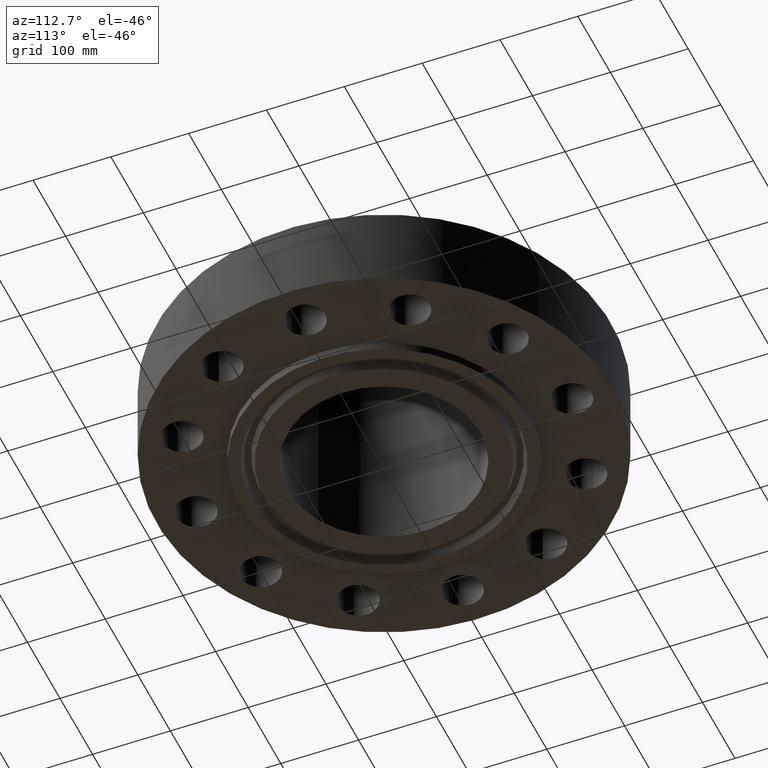
[diagram: clean part render]
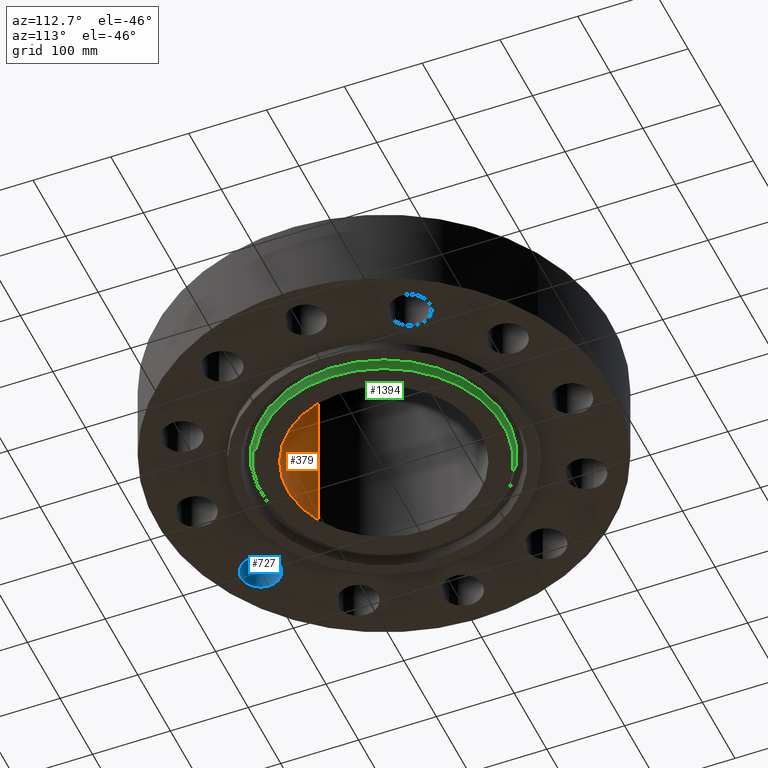
[diagram: same view with three faces highlighted in distinct colors, each labeled with its STEP entity id]
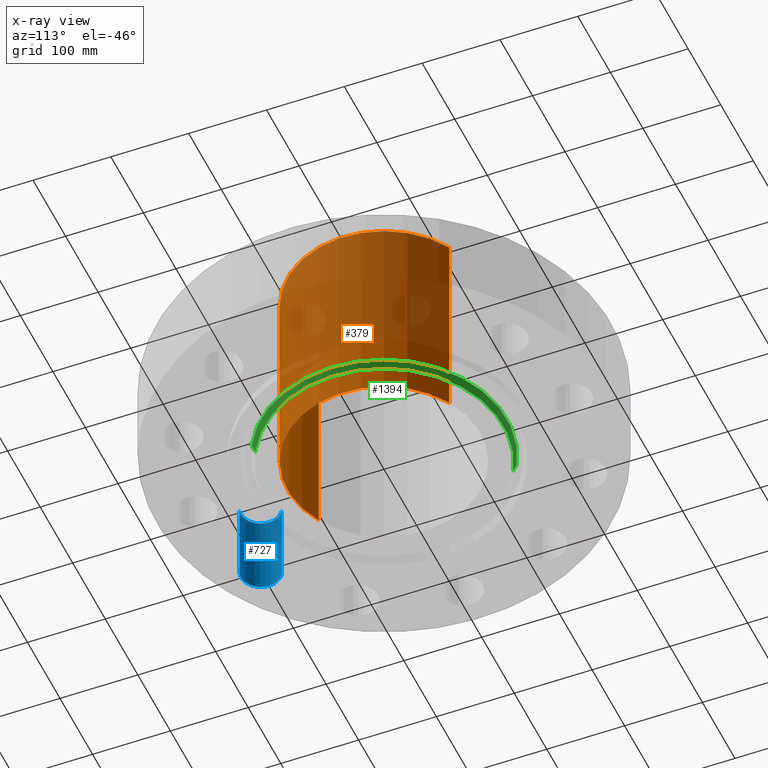
[diagram: x-ray of the same camera — body ghosted, the three highlighted faces saturated]
A machine part, auxiliary view with three faces highlighted in distinct colors.
The next image is the same camera in x-ray (body ghosted, the three faces saturated) — at least one of them is partly hidden behind the body in this view.
Their STEP definitions:

[orange] entity #379 — the highlighted cylindrical surface (partial cylindrical patch) has radius 123.825 mm, axis along (0, 0, -1).
#343=AXIS2_PLACEMENT_3D('Cylinder Axis2P3D',#340,#341,#342) ;
#347=AXIS2_PLACEMENT_3D('Circle Axis2P3D',#345,#346,$) ;
#363=AXIS2_PLACEMENT_3D('Circle Axis2P3D',#361,#362,$) ;
#340=CARTESIAN_POINT('Axis2P3D Location',(0.,0.,4.78100000002)) ;
#345=CARTESIAN_POINT('Axis2P3D Location',(0.,0.,10.)) ;
#349=CARTESIAN_POINT('Vertex',(2.3371995007,4.27821498923,10.)) ;
#351=CARTESIAN_POINT('Vertex',(-2.3371995007,-4.27821498923,10.)) ;
#354=CARTESIAN_POINT('Line Origine',(2.3371995007,4.27821498923,4.78100000002)) ;
#358=CARTESIAN_POINT('Vertex',(2.3371995007,4.27821498923,-0.438000000002)) ;
#361=CARTESIAN_POINT('Axis2P3D Location',(0.,0.,-0.438000000002)) ;
#365=CARTESIAN_POINT('Vertex',(-2.3371995007,-4.27821498923,-0.438000000002)) ;
#368=CARTESIAN_POINT('Line Origine',(-2.3371995007,-4.27821498923,4.78100000002)) ;
#341=DIRECTION('Axis2P3D Direction',(0.,0.,-0.0393700787402)) ;
#342=DIRECTION('Axis2P3D XDirection',(-0.0188750212049,-0.0345504945626,0.)) ;
#346=DIRECTION('Axis2P3D Direction',(0.,0.,-0.0393700787402)) ;
#355=DIRECTION('Vector Direction',(0.,0.,-0.0393700787402)) ;
#362=DIRECTION('Axis2P3D Direction',(0.,0.,-0.0393700787402)) ;
#369=DIRECTION('Vector Direction',(0.,0.,-0.0393700787402)) ;
#356=VECTOR('Line Direction',#355,0.0393700787402) ;
#370=VECTOR('Line Direction',#369,0.0393700787402) ;
#374=ORIENTED_EDGE('',*,*,#353,.F.) ;
#375=ORIENTED_EDGE('',*,*,#360,.T.) ;
#376=ORIENTED_EDGE('',*,*,#367,.T.) ;
#377=ORIENTED_EDGE('',*,*,#372,.F.) ;
#379=ADVANCED_FACE('PartBody',(#378),#344,.F.) ;
#348=CIRCLE('generated circle',#347,4.87500000002) ;
#364=CIRCLE('generated circle',#363,4.87500000002) ;
#344=CYLINDRICAL_SURFACE('generated cylinder',#343,4.87500000002) ;
#353=EDGE_CURVE('',#350,#352,#348,.T.) ;
#360=EDGE_CURVE('',#350,#359,#357,.T.) ;
#367=EDGE_CURVE('',#359,#366,#364,.T.) ;
#372=EDGE_CURVE('',#352,#366,#371,.T.) ;
#373=EDGE_LOOP('',(#374,#375,#376,#377)) ;
#378=FACE_OUTER_BOUND('',#373,.T.) ;
#357=LINE('Line',#354,#356) ;
#371=LINE('Line',#368,#370) ;
#350=VERTEX_POINT('',#349) ;
#352=VERTEX_POINT('',#351) ;
#359=VERTEX_POINT('',#358) ;
#366=VERTEX_POINT('',#365) ;

[blue] entity #727 — the highlighted cylindrical surface (edge-blend (fillet) strip) has radius 25.4 mm, axis along (0, 0, -1).
#608=AXIS2_PLACEMENT_3D('Circle Axis2P3D',#606,#607,$) ;
#700=AXIS2_PLACEMENT_3D('Cylinder Axis2P3D',#697,#698,#699) ;
#718=AXIS2_PLACEMENT_3D('Circle Axis2P3D',#716,#717,$) ;
#606=CARTESIAN_POINT('Axis2P3D Location',(-4.75000000002,-8.22724133599,0.)) ;
#610=CARTESIAN_POINT('Vertex',(-4.2297039768,-9.08122731259,0.)) ;
#612=CARTESIAN_POINT('Vertex',(-5.27029602323,-7.37325535938,0.)) ;
#697=CARTESIAN_POINT('Axis2P3D Location',(-4.75000000002,-8.22724133599,4.24606299214)) ;
#702=CARTESIAN_POINT('Line Origine',(-4.2297039768,-9.08122731259,2.12500000001)) ;
#706=CARTESIAN_POINT('Vertex',(-4.2297039768,-9.08122731259,4.25000000002)) ;
#709=CARTESIAN_POINT('Line Origine',(-5.27029602323,-7.37325535938,2.12500000001)) ;
#713=CARTESIAN_POINT('Vertex',(-5.27029602323,-7.37325535938,4.25000000002)) ;
#716=CARTESIAN_POINT('Axis2P3D Location',(-4.75000000002,-8.22724133599,4.25000000002)) ;
#607=DIRECTION('Axis2P3D Direction',(0.,0.,-0.0393700787402)) ;
#698=DIRECTION('Axis2P3D Direction',(0.,0.,-0.0393700787402)) ;
#699=DIRECTION('Axis2P3D XDirection',(-0.0204840954021,0.0336214951417,0.)) ;
#703=DIRECTION('Vector Direction',(0.,0.,-0.0393700787402)) ;
#710=DIRECTION('Vector Direction',(0.,0.,-0.0393700787402)) ;
#717=DIRECTION('Axis2P3D Direction',(0.,0.,-0.0393700787402)) ;
#704=VECTOR('Line Direction',#703,0.0393700787402) ;
#711=VECTOR('Line Direction',#710,0.0393700787402) ;
#722=ORIENTED_EDGE('',*,*,#708,.F.) ;
#723=ORIENTED_EDGE('',*,*,#614,.T.) ;
#724=ORIENTED_EDGE('',*,*,#715,.T.) ;
#725=ORIENTED_EDGE('',*,*,#720,.F.) ;
#727=ADVANCED_FACE('PartBody',(#726),#701,.F.) ;
#609=CIRCLE('generated circle',#608,1.) ;
#719=CIRCLE('generated circle',#718,1.) ;
#701=CYLINDRICAL_SURFACE('generated cylinder',#700,1.) ;
#614=EDGE_CURVE('',#611,#613,#609,.T.) ;
#708=EDGE_CURVE('',#611,#707,#705,.F.) ;
#715=EDGE_CURVE('',#613,#714,#712,.F.) ;
#720=EDGE_CURVE('',#707,#714,#719,.T.) ;
#721=EDGE_LOOP('',(#722,#723,#724,#725)) ;
#726=FACE_OUTER_BOUND('',#721,.T.) ;
#705=LINE('Line',#702,#704) ;
#712=LINE('Line',#709,#711) ;
#611=VERTEX_POINT('',#610) ;
#613=VERTEX_POINT('',#612) ;
#707=VERTEX_POINT('',#706) ;
#714=VERTEX_POINT('',#713) ;

[green] entity #1394 — the highlighted conical surface has half-angle 23 deg.
#1200=AXIS2_PLACEMENT_3D('Circle Axis2P3D',#1198,#1199,$) ;
#1344=AXIS2_PLACEMENT_3D('Circle Axis2P3D',#1342,#1343,$) ;
#1376=AXIS2_PLACEMENT_3D('Cone Axis2P3D',#1373,#1374,#1375) ;
#1198=CARTESIAN_POINT('Axis2P3D Location',(-1.67844740731E-015,-5.59482469102E-016,-0.438000000002)) ;
#1202=CARTESIAN_POINT('Vertex',(-2.89908623195,5.30674175177,-0.438000000002)) ;
#1204=CARTESIAN_POINT('Vertex',(2.89908623195,-5.30674175177,-0.438000000002)) ;
#1339=CARTESIAN_POINT('Vertex',(2.98040972578,-5.45560340871,-0.0383839389053)) ;
#1342=CARTESIAN_POINT('Axis2P3D Location',(0.,0.,-0.0383839389053)) ;
#1346=CARTESIAN_POINT('Vertex',(-2.98040972578,5.45560340871,-0.0383839389053)) ;
#1373=CARTESIAN_POINT('Axis2P3D Location',(0.,0.,-0.498000000002)) ;
#1378=CARTESIAN_POINT('Line Origine',(-2.93974797886,5.38117258024,-0.238191969454)) ;
#1383=CARTESIAN_POINT('Line Origine',(2.93974797886,-5.38117258024,-0.238191969454)) ;
#1199=DIRECTION('Axis2P3D Direction',(0.,0.,-0.0393700787402)) ;
#1343=DIRECTION('Axis2P3D Direction',(0.,0.,0.0393700787402)) ;
#1374=DIRECTION('Axis2P3D Direction',(0.,0.,0.0393700787402)) ;
#1375=DIRECTION('Axis2P3D XDirection',(-0.0188750212049,0.0345504945626,0.)) ;
#1379=DIRECTION('Vector Direction',(-0.00737505833565,0.0134999537303,0.0362403485611)) ;
#1384=DIRECTION('Vector Direction',(0.00737505833565,-0.0134999537303,0.0362403485611)) ;
#1380=VECTOR('Line Direction',#1379,0.0393700787402) ;
#1385=VECTOR('Line Direction',#1384,0.0393700787402) ;
#1389=ORIENTED_EDGE('',*,*,#1382,.F.) ;
#1390=ORIENTED_EDGE('',*,*,#1348,.F.) ;
#1391=ORIENTED_EDGE('',*,*,#1387,.T.) ;
#1392=ORIENTED_EDGE('',*,*,#1206,.F.) ;
#1394=ADVANCED_FACE('PartBody',(#1393),#1377,.T.) ;
#1201=CIRCLE('generated circle',#1200,6.04700000002) ;
#1345=CIRCLE('generated circle',#1344,6.21662695411) ;
#1377=CONICAL_SURFACE('Cone',#1376,6.02153151105,0.401425727959) ;
#1206=EDGE_CURVE('',#1203,#1205,#1201,.T.) ;
#1348=EDGE_CURVE('',#1340,#1347,#1345,.T.) ;
#1382=EDGE_CURVE('',#1347,#1203,#1381,.F.) ;
#1387=EDGE_CURVE('',#1340,#1205,#1386,.F.) ;
#1388=EDGE_LOOP('',(#1389,#1390,#1391,#1392)) ;
#1393=FACE_OUTER_BOUND('',#1388,.T.) ;
#1381=LINE('Line',#1378,#1380) ;
#1386=LINE('Line',#1383,#1385) ;
#1203=VERTEX_POINT('',#1202) ;
#1205=VERTEX_POINT('',#1204) ;
#1340=VERTEX_POINT('',#1339) ;
#1347=VERTEX_POINT('',#1346) ;